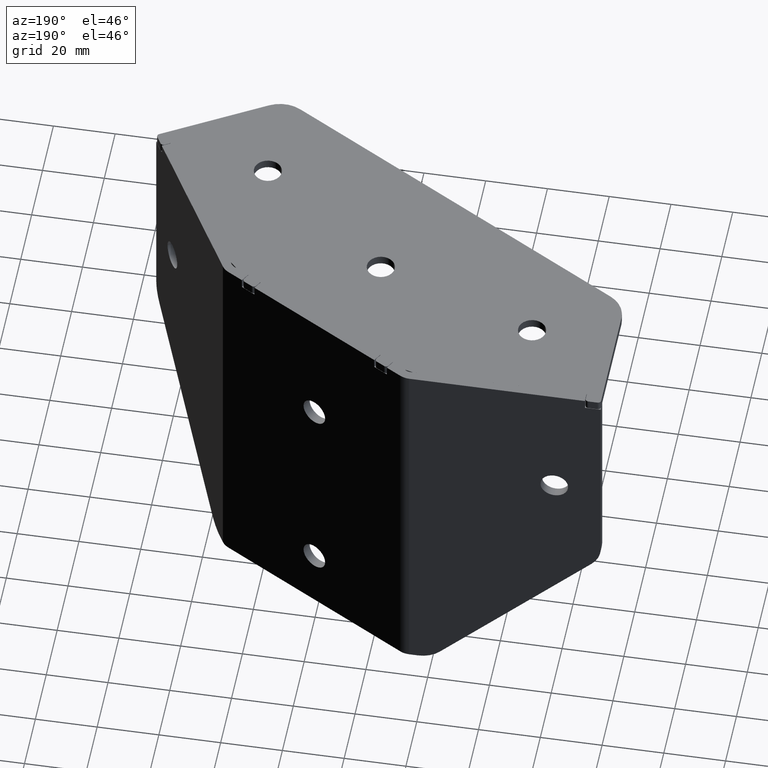
[diagram: clean part render]
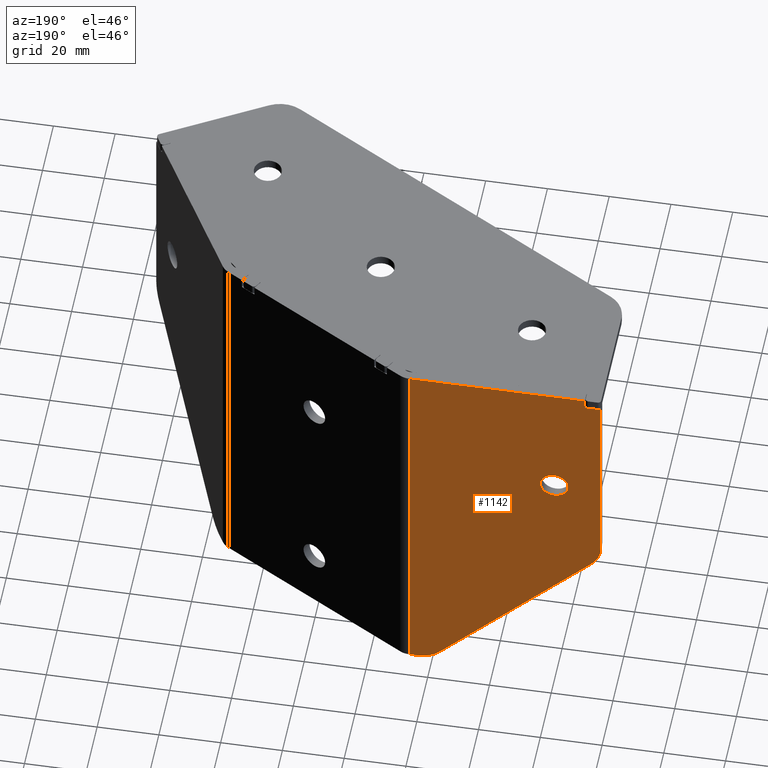
[diagram: same view with one face highlighted and labeled with its STEP entity id]
A machine part, auxiliary view. The second image highlights one B-rep face of the part: STEP entity #1142.
In plain terms, the highlighted planar face has unit normal (0, -1, 0).
Its self-contained STEP definition (entity closure, byte-faithful):
#31 = DIRECTION ( 'NONE',  ( 1.000000000000000000, 0.000000000000000000, 0.000000000000000000 ) ) ;
#46 = CARTESIAN_POINT ( 'NONE',  ( 525.0000000000000000, 1094.305264068950919, 1260.499999999999545 ) ) ;
#81 = VECTOR ( 'NONE', #2188, 1000.000000000000000 ) ;
#111 = LINE ( 'NONE', #46, #2540 ) ;
#121 = PLANE ( 'NONE',  #386 ) ;
#137 = DIRECTION ( 'NONE',  ( 0.000000000000000000, -0.000000000000000000, -1.000000000000000000 ) ) ;
#138 = VECTOR ( 'NONE', #769, 1000.000000000000000 ) ;
#181 = FACE_OUTER_BOUND ( 'NONE', #2402, .T. ) ;
#217 = DIRECTION ( 'NONE',  ( 0.000000000000000000, -1.000000000000000000, 0.000000000000000000 ) ) ;
#223 = LINE ( 'NONE', #1913, #138 ) ;
#238 = VERTEX_POINT ( 'NONE', #2097 ) ;
#290 = DIRECTION ( 'NONE',  ( 0.000000000000000000, -1.000000000000000000, 0.000000000000000000 ) ) ;
#299 = CARTESIAN_POINT ( 'NONE',  ( 577.1591750913480610, 1094.305264068950919, 1136.928932188134013 ) ) ;
#332 = ORIENTED_EDGE ( 'NONE', *, *, #766, .F. ) ;
#377 = VERTEX_POINT ( 'NONE', #2269 ) ;
#386 = AXIS2_PLACEMENT_3D ( 'NONE', #2294, #1320, #137 ) ;
#397 = AXIS2_PLACEMENT_3D ( 'NONE', #1269, #2236, #1720 ) ;
#600 = VECTOR ( 'NONE', #1505, 1000.000000000000000 ) ;
#609 = FACE_BOUND ( 'NONE', #2802, .T. ) ;
#689 = CIRCLE ( 'NONE', #2125, 10.00000000000000888 ) ;
#690 = VERTEX_POINT ( 'NONE', #794 ) ;
#695 = ORIENTED_EDGE ( 'NONE', *, *, #780, .F. ) ;
#714 = CARTESIAN_POINT ( 'NONE',  ( 540.0000000000000000, 1094.305264068950919, 1220.000000000000000 ) ) ;
#720 = EDGE_CURVE ( 'NONE', #2113, #2926, #111, .T. ) ;
#726 = ORIENTED_EDGE ( 'NONE', *, *, #1675, .F. ) ;
#766 = EDGE_CURVE ( 'NONE', #907, #1533, #1183, .T. ) ;
#769 = DIRECTION ( 'NONE',  ( -0.7071067811865469066, 0.000000000000000000, 0.7071067811865482389 ) ) ;
#780 = EDGE_CURVE ( 'NONE', #2251, #3109, #689, .T. ) ;
#794 = CARTESIAN_POINT ( 'NONE',  ( 540.0000000000000000, 1094.305264068950919, 1224.500000000000227 ) ) ;
#843 = DIRECTION ( 'NONE',  ( 0.000000000000000000, -1.000000000000000000, 0.000000000000000000 ) ) ;
#856 = CARTESIAN_POINT ( 'NONE',  ( 540.0000000000000000, 1094.305264068950919, 1215.499999999999773 ) ) ;
#907 = VERTEX_POINT ( 'NONE', #1563 ) ;
#1006 = EDGE_CURVE ( 'NONE', #238, #377, #2175, .T. ) ;
#1089 = ORIENTED_EDGE ( 'NONE', *, *, #1407, .F. ) ;
#1142 = ADVANCED_FACE ( 'NONE', ( #609, #181 ), #121, .F. ) ;
#1183 = CIRCLE ( 'NONE', #1885, 10.00000000000000888 ) ;
#1202 = VERTEX_POINT ( 'NONE', #856 ) ;
#1236 = CARTESIAN_POINT ( 'NONE',  ( 530.1000000000000227, 1094.305264068950919, 1260.499999999999545 ) ) ;
#1237 = CARTESIAN_POINT ( 'NONE',  ( 530.1000000000000227, 1094.305264068950919, 1133.999999999999545 ) ) ;
#1248 = CARTESIAN_POINT ( 'NONE',  ( 584.2302429032135933, 1094.305264068950919, 1143.999999999999545 ) ) ;
#1256 = LINE ( 'NONE', #1721, #600 ) ;
#1269 = CARTESIAN_POINT ( 'NONE',  ( 540.0000000000000000, 1094.305264068950919, 1220.000000000000000 ) ) ;
#1295 = ORIENTED_EDGE ( 'NONE', *, *, #1910, .T. ) ;
#1296 = VECTOR ( 'NONE', #2677, 1000.000000000000000 ) ;
#1320 = DIRECTION ( 'NONE',  ( 0.000000000000000000, -1.000000000000000000, 0.000000000000000000 ) ) ;
#1327 = CARTESIAN_POINT ( 'NONE',  ( 586.9999884583739913, 1094.305264068950919, 1260.499999999999545 ) ) ;
#1331 = ORIENTED_EDGE ( 'NONE', *, *, #720, .T. ) ;
#1407 = EDGE_CURVE ( 'NONE', #2113, #238, #1486, .T. ) ;
#1423 = CARTESIAN_POINT ( 'NONE',  ( 586.9999884583739913, 1094.305264068950919, 1133.999999999999545 ) ) ;
#1441 = CIRCLE ( 'NONE', #1594, 4.500000000000170530 ) ;
#1486 = LINE ( 'NONE', #1237, #81 ) ;
#1505 = DIRECTION ( 'NONE',  ( -0.000000000000000000, 0.000000000000000000, 1.000000000000000000 ) ) ;
#1533 = VERTEX_POINT ( 'NONE', #2905 ) ;
#1540 = VECTOR ( 'NONE', #2889, 1000.000000000000000 ) ;
#1563 = CARTESIAN_POINT ( 'NONE',  ( 525.0000000000000000, 1094.305264068950919, 1193.230242903213139 ) ) ;
#1594 = AXIS2_PLACEMENT_3D ( 'NONE', #714, #217, #1817 ) ;
#1600 = ORIENTED_EDGE ( 'NONE', *, *, #2786, .F. ) ;
#1675 = EDGE_CURVE ( 'NONE', #2322, #2926, #1918, .T. ) ;
#1720 = DIRECTION ( 'NONE',  ( 0.000000000000000000, 0.000000000000000000, -1.000000000000000000 ) ) ;
#1721 = CARTESIAN_POINT ( 'NONE',  ( 525.0000000000000000, 1094.305264068950919, 1133.999999999999545 ) ) ;
#1729 = ORIENTED_EDGE ( 'NONE', *, *, #1954, .T. ) ;
#1746 = DIRECTION ( 'NONE',  ( 0.000000000000000000, 0.000000000000000000, -1.000000000000000000 ) ) ;
#1751 = LINE ( 'NONE', #2181, #2002 ) ;
#1817 = DIRECTION ( 'NONE',  ( 0.000000000000000000, 0.000000000000000000, -1.000000000000000000 ) ) ;
#1825 = ORIENTED_EDGE ( 'NONE', *, *, #2716, .T. ) ;
#1832 = EDGE_CURVE ( 'NONE', #2251, #1533, #223, .T. ) ;
#1848 = CARTESIAN_POINT ( 'NONE',  ( 586.9999884583739913, 1094.305264068950919, 1133.999999999999545 ) ) ;
#1885 = AXIS2_PLACEMENT_3D ( 'NONE', #2023, #843, #2697 ) ;
#1910 = EDGE_CURVE ( 'NONE', #907, #377, #1256, .T. ) ;
#1913 = CARTESIAN_POINT ( 'NONE',  ( 552.5440536397413780, 1094.305264068950919, 1161.544053639740696 ) ) ;
#1918 = LINE ( 'NONE', #1423, #1296 ) ;
#1949 = CARTESIAN_POINT ( 'NONE',  ( 525.0000000000000000, 1094.305264068950919, 1257.399999999999636 ) ) ;
#1954 = EDGE_CURVE ( 'NONE', #1202, #690, #1441, .T. ) ;
#2002 = VECTOR ( 'NONE', #31, 1000.000000000000000 ) ;
#2023 = CARTESIAN_POINT ( 'NONE',  ( 535.0000000000000000, 1094.305264068950919, 1193.230242903213139 ) ) ;
#2087 = ORIENTED_EDGE ( 'NONE', *, *, #1006, .F. ) ;
#2097 = CARTESIAN_POINT ( 'NONE',  ( 530.1000000000000227, 1094.305264068950919, 1257.399999999999636 ) ) ;
#2113 = VERTEX_POINT ( 'NONE', #1236 ) ;
#2125 = AXIS2_PLACEMENT_3D ( 'NONE', #1248, #290, #1746 ) ;
#2175 = LINE ( 'NONE', #1949, #1540 ) ;
#2181 = CARTESIAN_POINT ( 'NONE',  ( 525.0000000000000000, 1094.305264068950919, 1133.999999999999545 ) ) ;
#2188 = DIRECTION ( 'NONE',  ( 0.000000000000000000, -0.000000000000000000, -1.000000000000000000 ) ) ;
#2197 = CIRCLE ( 'NONE', #397, 4.500000000000170530 ) ;
#2236 = DIRECTION ( 'NONE',  ( 0.000000000000000000, -1.000000000000000000, 0.000000000000000000 ) ) ;
#2249 = CARTESIAN_POINT ( 'NONE',  ( 584.2302429032135933, 1094.305264068950919, 1133.999999999999545 ) ) ;
#2251 = VERTEX_POINT ( 'NONE', #299 ) ;
#2253 = DIRECTION ( 'NONE',  ( 1.000000000000000000, 0.000000000000000000, 0.000000000000000000 ) ) ;
#2269 = CARTESIAN_POINT ( 'NONE',  ( 525.0000000000000000, 1094.305264068950919, 1257.399999999999636 ) ) ;
#2294 = CARTESIAN_POINT ( 'NONE',  ( 525.0000000000000000, 1094.305264068950919, 1133.999999999999545 ) ) ;
#2322 = VERTEX_POINT ( 'NONE', #1848 ) ;
#2387 = ORIENTED_EDGE ( 'NONE', *, *, #1832, .T. ) ;
#2402 = EDGE_LOOP ( 'NONE', ( #1089, #1331, #726, #1600, #695, #2387, #332, #1295, #2087 ) ) ;
#2540 = VECTOR ( 'NONE', #2253, 1000.000000000000000 ) ;
#2677 = DIRECTION ( 'NONE',  ( -0.000000000000000000, 0.000000000000000000, 1.000000000000000000 ) ) ;
#2697 = DIRECTION ( 'NONE',  ( 0.000000000000000000, 0.000000000000000000, -1.000000000000000000 ) ) ;
#2716 = EDGE_CURVE ( 'NONE', #690, #1202, #2197, .T. ) ;
#2786 = EDGE_CURVE ( 'NONE', #3109, #2322, #1751, .T. ) ;
#2802 = EDGE_LOOP ( 'NONE', ( #1729, #1825 ) ) ;
#2889 = DIRECTION ( 'NONE',  ( -1.000000000000000000, -0.000000000000000000, -0.000000000000000000 ) ) ;
#2905 = CARTESIAN_POINT ( 'NONE',  ( 527.9289321881345813, 1094.305264068950919, 1186.159175091347606 ) ) ;
#2926 = VERTEX_POINT ( 'NONE', #1327 ) ;
#3109 = VERTEX_POINT ( 'NONE', #2249 ) ;